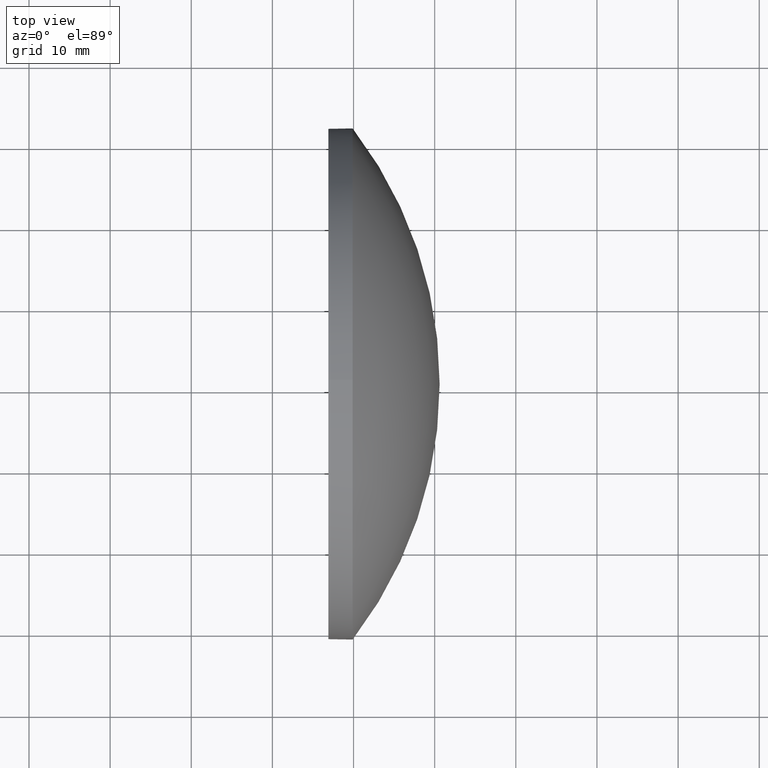
[diagram: clean part render]
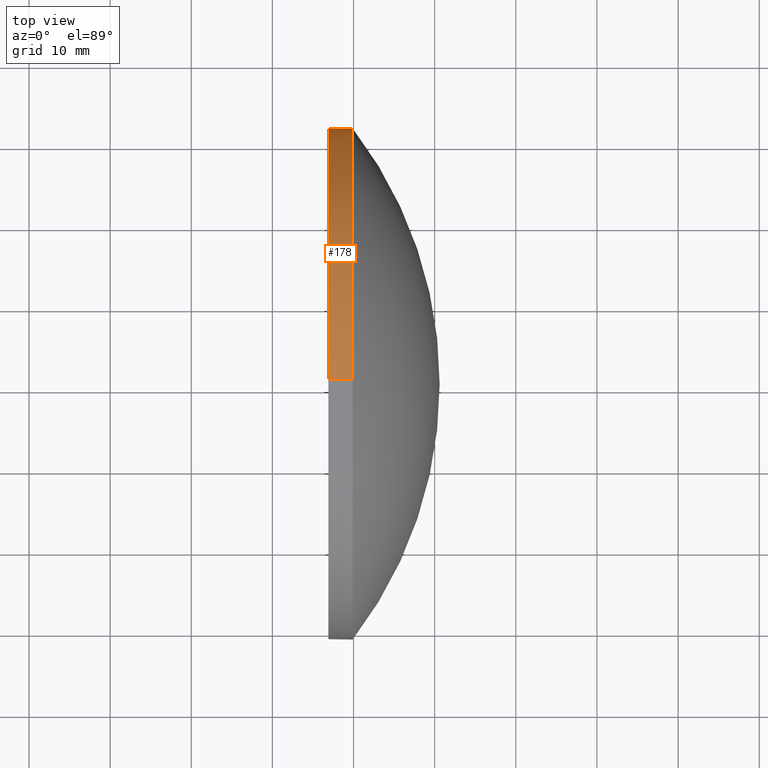
[diagram: same view with one face highlighted and labeled with its STEP entity id]
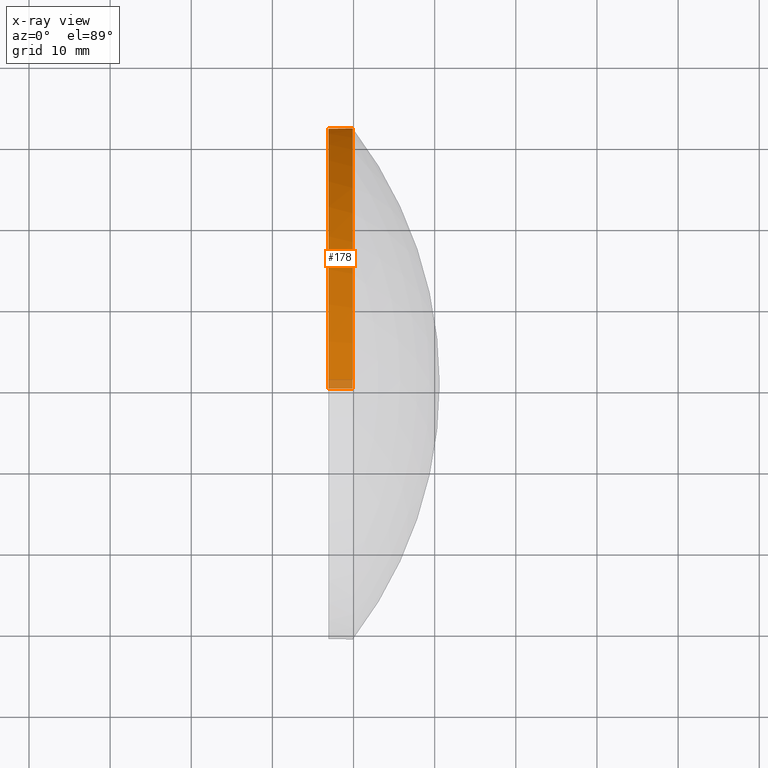
[diagram: x-ray of the same camera — body ghosted, the highlighted face saturated]
A machine part, top view. The second image highlights one B-rep face of the part: STEP entity #178.
The next image is the same camera in x-ray: the body ghosted, the highlighted face saturated — about 3% of this face is hidden behind the body in this view.
In plain terms, the highlighted cylindrical surface (partial cylindrical patch) has radius 31.5 mm, axis along (-1, -0, -0).
Its self-contained STEP definition (entity closure, byte-faithful):
#3 = CIRCLE ( 'NONE', #48, 31.50000000000000000 ) ;
#5 = EDGE_CURVE ( 'NONE', #126, #170, #175, .T. ) ;
#7 = DIRECTION ( 'NONE',  ( 0.0000000000000000000, 0.0000000000000000000, 1.000000000000000000 ) ) ;
#9 = CARTESIAN_POINT ( 'NONE',  ( 229.8933010013870400, 162.0185814569561000, 0.0000000000000000000 ) ) ;
#12 = CARTESIAN_POINT ( 'NONE',  ( 218.1236667371545400, 130.5185814569561000, 0.0000000000000000000 ) ) ;
#17 = AXIS2_PLACEMENT_3D ( 'NONE', #12, #46, #26 ) ;
#18 = DIRECTION ( 'NONE',  ( -1.000000000000000000, -0.0000000000000000000, -0.0000000000000000000 ) ) ;
#19 = CARTESIAN_POINT ( 'NONE',  ( 218.1236667371545400, 130.5185814569561000, -31.50000000000000000 ) ) ;
#26 = DIRECTION ( 'NONE',  ( 0.0000000000000000000, 0.0000000000000000000, 1.000000000000000000 ) ) ;
#29 = CARTESIAN_POINT ( 'NONE',  ( 226.8933010013870400, 130.5185814569561000, -31.50000000000000000 ) ) ;
#32 = EDGE_CURVE ( 'NONE', #37, #65, #3, .T. ) ;
#34 = EDGE_CURVE ( 'NONE', #41, #170, #146, .T. ) ;
#37 = VERTEX_POINT ( 'NONE', #128 ) ;
#40 = DIRECTION ( 'NONE',  ( -1.000000000000000000, -0.0000000000000000000, -0.0000000000000000000 ) ) ;
#41 = VERTEX_POINT ( 'NONE', #106 ) ;
#46 = DIRECTION ( 'NONE',  ( -1.000000000000000000, -0.0000000000000000000, -0.0000000000000000000 ) ) ;
#48 = AXIS2_PLACEMENT_3D ( 'NONE', #184, #40, #151 ) ;
#65 = VERTEX_POINT ( 'NONE', #9 ) ;
#66 = DIRECTION ( 'NONE',  ( -1.000000000000000000, -0.0000000000000000000, -0.0000000000000000000 ) ) ;
#68 = CARTESIAN_POINT ( 'NONE',  ( 226.8933010013870400, 130.5185814569561000, 31.50000000000000000 ) ) ;
#73 = ORIENTED_EDGE ( 'NONE', *, *, #5, .F. ) ;
#81 = EDGE_CURVE ( 'NONE', #65, #41, #177, .T. ) ;
#89 = LINE ( 'NONE', #148, #158 ) ;
#91 = CARTESIAN_POINT ( 'NONE',  ( 226.8933010013870400, 130.5185814569561000, 0.0000000000000000000 ) ) ;
#92 = ORIENTED_EDGE ( 'NONE', *, *, #34, .T. ) ;
#104 = DIRECTION ( 'NONE',  ( -1.000000000000000000, -0.0000000000000000000, -0.0000000000000000000 ) ) ;
#106 = CARTESIAN_POINT ( 'NONE',  ( 229.8933010013870400, 130.5185814569561000, -31.50000000000000000 ) ) ;
#118 = ORIENTED_EDGE ( 'NONE', *, *, #81, .T. ) ;
#120 = AXIS2_PLACEMENT_3D ( 'NONE', #91, #18, #180 ) ;
#121 = VECTOR ( 'NONE', #104, 1000.000000000000000 ) ;
#126 = VERTEX_POINT ( 'NONE', #68 ) ;
#128 = CARTESIAN_POINT ( 'NONE',  ( 229.8933010013870400, 130.5185814569561000, 31.50000000000000000 ) ) ;
#129 = DIRECTION ( 'NONE',  ( -1.000000000000000000, -0.0000000000000000000, -0.0000000000000000000 ) ) ;
#132 = FACE_OUTER_BOUND ( 'NONE', #183, .T. ) ;
#133 = AXIS2_PLACEMENT_3D ( 'NONE', #169, #129, #7 ) ;
#137 = ORIENTED_EDGE ( 'NONE', *, *, #32, .T. ) ;
#139 = EDGE_CURVE ( 'NONE', #37, #126, #89, .T. ) ;
#146 = LINE ( 'NONE', #19, #121 ) ;
#148 = CARTESIAN_POINT ( 'NONE',  ( 218.1236667371545400, 130.5185814569561000, 31.50000000000000000 ) ) ;
#151 = DIRECTION ( 'NONE',  ( 0.0000000000000000000, 0.0000000000000000000, 1.000000000000000000 ) ) ;
#152 = ORIENTED_EDGE ( 'NONE', *, *, #139, .F. ) ;
#158 = VECTOR ( 'NONE', #66, 1000.000000000000000 ) ;
#163 = CYLINDRICAL_SURFACE ( 'NONE', #17, 31.50000000000000000 ) ;
#169 = CARTESIAN_POINT ( 'NONE',  ( 229.8933010013870400, 130.5185814569561000, 0.0000000000000000000 ) ) ;
#170 = VERTEX_POINT ( 'NONE', #29 ) ;
#175 = CIRCLE ( 'NONE', #120, 31.50000000000000000 ) ;
#177 = CIRCLE ( 'NONE', #133, 31.50000000000000000 ) ;
#178 = ADVANCED_FACE ( 'NONE', ( #132 ), #163, .T. ) ;
#180 = DIRECTION ( 'NONE',  ( 0.0000000000000000000, 0.0000000000000000000, 1.000000000000000000 ) ) ;
#183 = EDGE_LOOP ( 'NONE', ( #118, #92, #73, #152, #137 ) ) ;
#184 = CARTESIAN_POINT ( 'NONE',  ( 229.8933010013870400, 130.5185814569561000, 0.0000000000000000000 ) ) ;